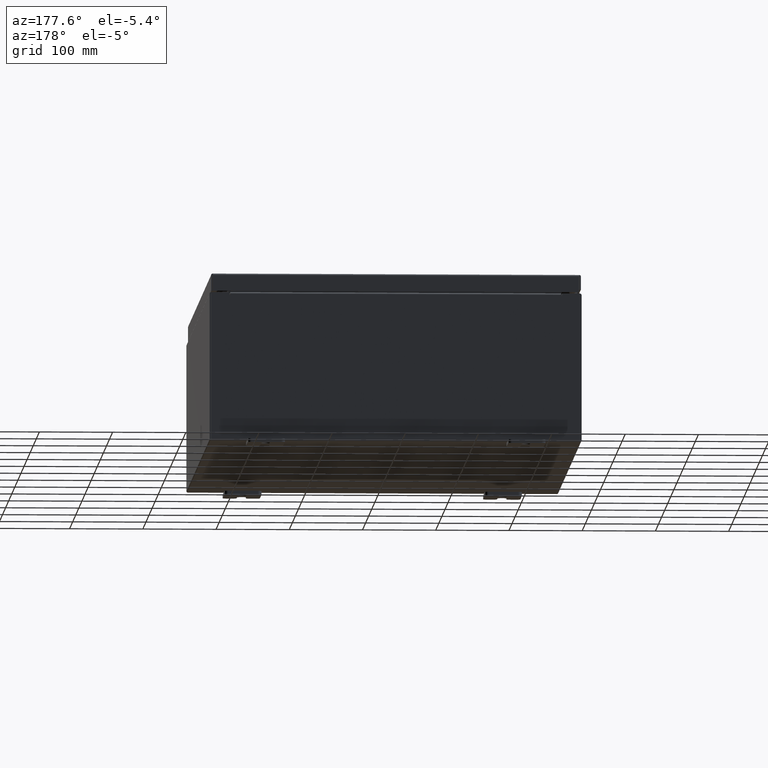
[diagram: clean part render]
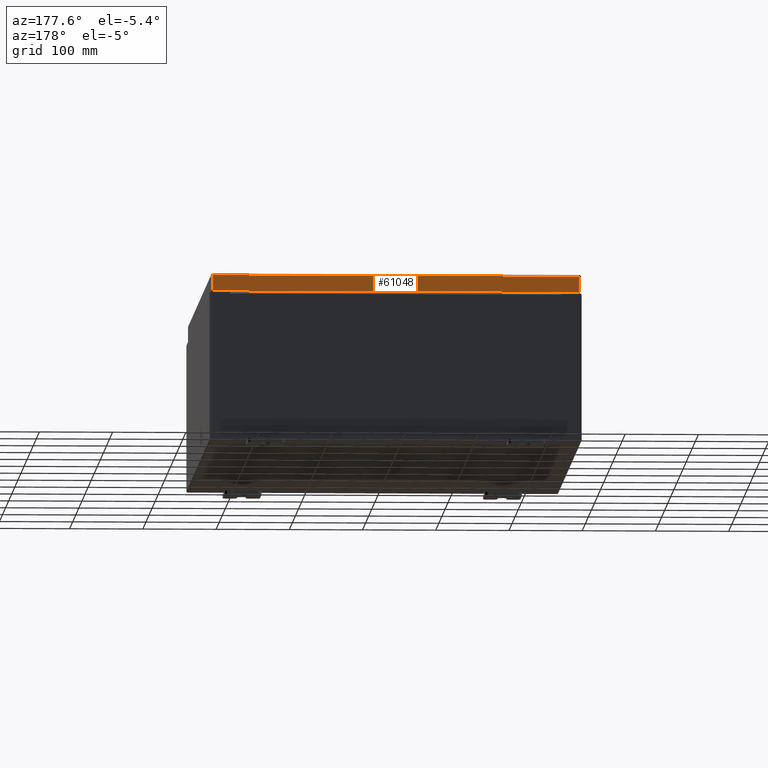
[diagram: same view with one face highlighted and labeled with its STEP entity id]
A machine part, auxiliary view. The second image highlights one B-rep face of the part: STEP entity #61048.
In plain terms, the highlighted planar face has unit normal (0, -1, -0).
Its self-contained STEP definition (entity closure, byte-faithful):
#2796 = DIRECTION ( 'NONE',  ( 0.0000000000000000000, 2.532419924601859000E-015, -1.000000000000000000 ) ) ;
#3757 = CARTESIAN_POINT ( 'NONE',  ( -9.848657864376269400, 14.93750000000000200, -0.07469999999999980800 ) ) ;
#5896 = ORIENTED_EDGE ( 'NONE', *, *, #9550, .T. ) ;
#6245 = AXIS2_PLACEMENT_3D ( 'NONE', #49361, #39651, #9947 ) ;
#9550 = EDGE_CURVE ( 'NONE', #10039, #38519, #55272, .T. ) ;
#9673 = DIRECTION ( 'NONE',  ( -1.000000000000000000, -3.480848447868670800E-032, -1.099611771034672500E-016 ) ) ;
#9947 = DIRECTION ( 'NONE',  ( 0.0000000000000000000, 2.532419924601859000E-015, -1.000000000000000000 ) ) ;
#10039 = VERTEX_POINT ( 'NONE', #40912 ) ;
#11134 = CARTESIAN_POINT ( 'NONE',  ( -9.848657864376265900, 14.93750000000000200, -0.08769999999999898700 ) ) ;
#12383 = CARTESIAN_POINT ( 'NONE',  ( 9.848657864376265900, 14.93750000000000400, -0.9376999999999997600 ) ) ;
#12754 = CARTESIAN_POINT ( 'NONE',  ( 9.848657864376265900, 14.93750000000000200, 3.808883627975185600E-014 ) ) ;
#14859 = EDGE_CURVE ( 'NONE', #10039, #44772, #20844, .T. ) ;
#15222 = EDGE_CURVE ( 'NONE', #44772, #23368, #33193, .T. ) ;
#15518 = CARTESIAN_POINT ( 'NONE',  ( -9.937500000000000000, 14.93750000000000200, -0.08770000000000008300 ) ) ;
#17264 = CARTESIAN_POINT ( 'NONE',  ( -9.848657864376269400, 14.93750000000000400, -0.9377000000000023100 ) ) ;
#18726 = LINE ( 'NONE', #19730, #43547 ) ;
#19251 = VECTOR ( 'NONE', #9673, 39.37007874015748100 ) ;
#19730 = CARTESIAN_POINT ( 'NONE',  ( -9.937500000000000000, 14.93750000000000400, -0.9377000000000023100 ) ) ;
#20844 = LINE ( 'NONE', #15518, #19251 ) ;
#21142 = ORIENTED_EDGE ( 'NONE', *, *, #14859, .F. ) ;
#21755 = PLANE ( 'NONE',  #6245 ) ;
#23368 = VERTEX_POINT ( 'NONE', #17264 ) ;
#24712 = DIRECTION ( 'NONE',  ( 1.000000000000000000, -4.379057701015054300E-047, 1.237063242414006500E-016 ) ) ;
#28895 = VECTOR ( 'NONE', #2796, 39.37007874015748100 ) ;
#30953 = ORIENTED_EDGE ( 'NONE', *, *, #15222, .F. ) ;
#33193 = LINE ( 'NONE', #3757, #59565 ) ;
#38451 = DIRECTION ( 'NONE',  ( -0.0000000000000000000, 2.532419924601859000E-015, -1.000000000000000000 ) ) ;
#38519 = VERTEX_POINT ( 'NONE', #12383 ) ;
#39651 = DIRECTION ( 'NONE',  ( 3.132763603081808900E-031, -1.000000000000000000, -2.532419924601859000E-015 ) ) ;
#39983 = FACE_OUTER_BOUND ( 'NONE', #44481, .T. ) ;
#40912 = CARTESIAN_POINT ( 'NONE',  ( 9.848657864376265900, 14.93750000000000200, -0.08769999999999791900 ) ) ;
#43547 = VECTOR ( 'NONE', #24712, 39.37007874015748100 ) ;
#44481 = EDGE_LOOP ( 'NONE', ( #21142, #5896, #45071, #30953 ) ) ;
#44772 = VERTEX_POINT ( 'NONE', #11134 ) ;
#45071 = ORIENTED_EDGE ( 'NONE', *, *, #64127, .F. ) ;
#49361 = CARTESIAN_POINT ( 'NONE',  ( -4.679565632103452300E-030, 14.93750000000000200, 3.808883627975185600E-014 ) ) ;
#55272 = LINE ( 'NONE', #12754, #28895 ) ;
#59565 = VECTOR ( 'NONE', #38451, 39.37007874015748100 ) ;
#61048 = ADVANCED_FACE ( 'NONE', ( #39983 ), #21755, .F. ) ;
#64127 = EDGE_CURVE ( 'NONE', #23368, #38519, #18726, .T. ) ;